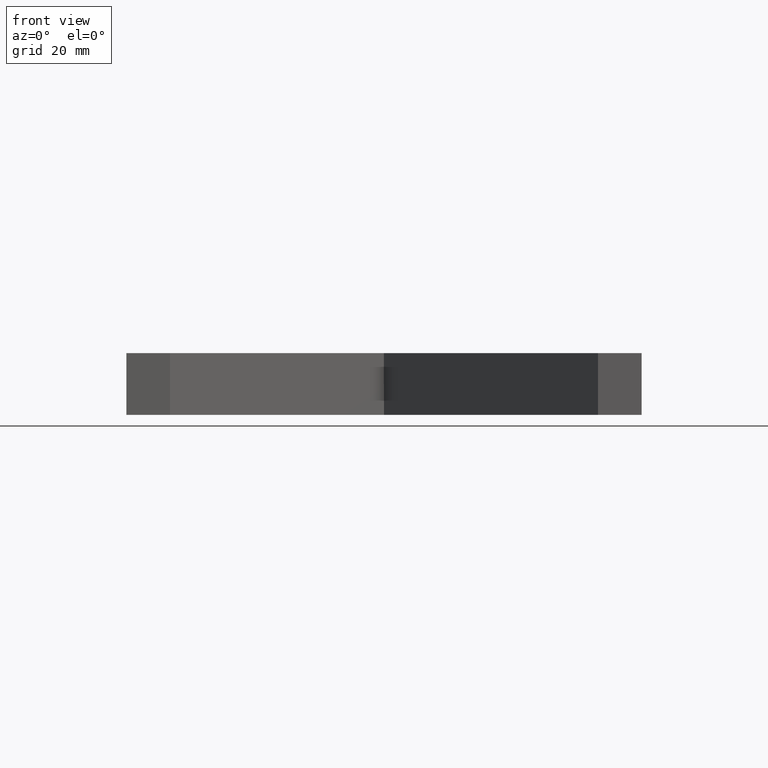
[diagram: clean part render]
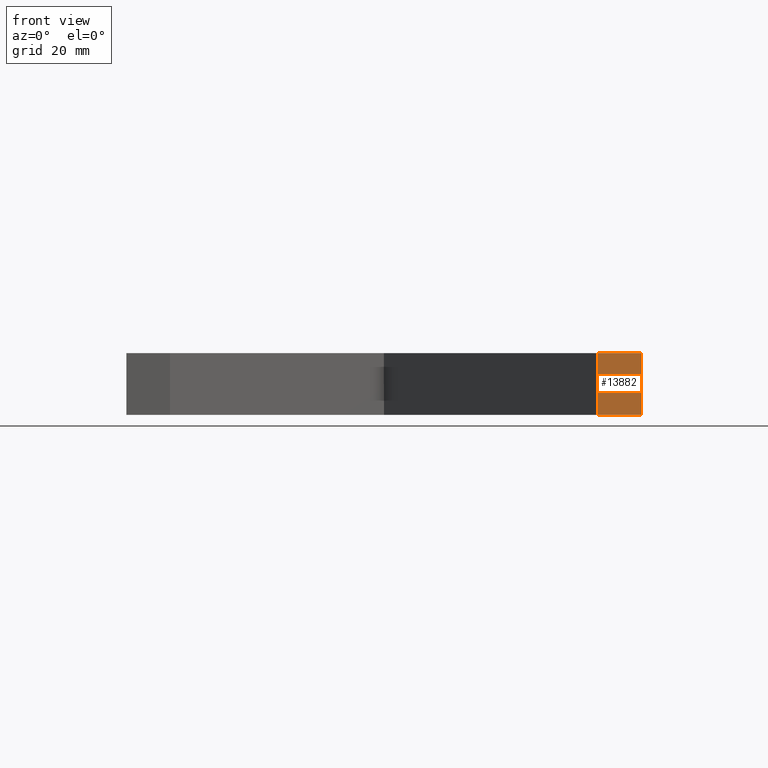
[diagram: same view with one face highlighted and labeled with its STEP entity id]
A machine part, front view. The second image highlights one B-rep face of the part: STEP entity #13882.
In plain terms, the highlighted planar face has unit normal (0, 1, 0).
Its self-contained STEP definition (entity closure, byte-faithful):
#231 = VERTEX_POINT ( 'NONE', #5825 ) ;
#827 = EDGE_LOOP ( 'NONE', ( #12012, #6180, #4284, #12902 ) ) ;
#1143 = EDGE_CURVE ( 'NONE', #231, #5224, #4309, .T. ) ;
#1351 = LINE ( 'NONE', #9395, #2035 ) ;
#1991 = DIRECTION ( 'NONE',  ( 0.000000000000000000, 1.000000000000000000, 0.000000000000000000 ) ) ;
#2035 = VECTOR ( 'NONE', #13005, 1000.000000000000000 ) ;
#2039 = CARTESIAN_POINT ( 'NONE',  ( 41.51471862576144645, -50.00000000000000000, 12.00000000000000000 ) ) ;
#2086 = PLANE ( 'NONE',  #3555 ) ;
#3555 = AXIS2_PLACEMENT_3D ( 'NONE', #2039, #1991, #8542 ) ;
#3633 = DIRECTION ( 'NONE',  ( -0.000000000000000000, -0.000000000000000000, -1.000000000000000000 ) ) ;
#4050 = EDGE_CURVE ( 'NONE', #7827, #12082, #9953, .T. ) ;
#4284 = ORIENTED_EDGE ( 'NONE', *, *, #1143, .F. ) ;
#4309 = LINE ( 'NONE', #11348, #7075 ) ;
#5224 = VERTEX_POINT ( 'NONE', #6348 ) ;
#5538 = LINE ( 'NONE', #8635, #11222 ) ;
#5825 = CARTESIAN_POINT ( 'NONE',  ( 41.51471862576144645, -50.00000000000000000, 12.00000000000000000 ) ) ;
#5887 = DIRECTION ( 'NONE',  ( 1.000000000000000000, 0.000000000000000000, 0.000000000000000000 ) ) ;
#6180 = ORIENTED_EDGE ( 'NONE', *, *, #8709, .F. ) ;
#6348 = CARTESIAN_POINT ( 'NONE',  ( 50.00000000000001421, -50.00000000000000000, 12.00000000000000000 ) ) ;
#6395 = FACE_OUTER_BOUND ( 'NONE', #827, .T. ) ;
#7075 = VECTOR ( 'NONE', #5887, 1000.000000000000000 ) ;
#7270 = CARTESIAN_POINT ( 'NONE',  ( 50.00000000000001421, -50.00000000000000000, 0.000000000000000000 ) ) ;
#7827 = VERTEX_POINT ( 'NONE', #9955 ) ;
#8243 = VECTOR ( 'NONE', #8710, 1000.000000000000000 ) ;
#8542 = DIRECTION ( 'NONE',  ( 0.000000000000000000, -0.000000000000000000, 1.000000000000000000 ) ) ;
#8635 = CARTESIAN_POINT ( 'NONE',  ( 41.51471862576144645, -50.00000000000000000, 12.00000000000000000 ) ) ;
#8709 = EDGE_CURVE ( 'NONE', #5224, #12082, #1351, .T. ) ;
#8710 = DIRECTION ( 'NONE',  ( 1.000000000000000000, 0.000000000000000000, 0.000000000000000000 ) ) ;
#9395 = CARTESIAN_POINT ( 'NONE',  ( 50.00000000000001421, -50.00000000000000000, 12.00000000000000000 ) ) ;
#9953 = LINE ( 'NONE', #14223, #8243 ) ;
#9955 = CARTESIAN_POINT ( 'NONE',  ( 41.51471862576144645, -50.00000000000000000, 0.000000000000000000 ) ) ;
#11222 = VECTOR ( 'NONE', #3633, 1000.000000000000000 ) ;
#11348 = CARTESIAN_POINT ( 'NONE',  ( 41.51471862576144645, -50.00000000000000000, 12.00000000000000000 ) ) ;
#12012 = ORIENTED_EDGE ( 'NONE', *, *, #4050, .T. ) ;
#12082 = VERTEX_POINT ( 'NONE', #7270 ) ;
#12902 = ORIENTED_EDGE ( 'NONE', *, *, #13373, .T. ) ;
#13005 = DIRECTION ( 'NONE',  ( -0.000000000000000000, -0.000000000000000000, -1.000000000000000000 ) ) ;
#13373 = EDGE_CURVE ( 'NONE', #231, #7827, #5538, .T. ) ;
#13882 = ADVANCED_FACE ( 'NONE', ( #6395 ), #2086, .F. ) ;
#14223 = CARTESIAN_POINT ( 'NONE',  ( 41.51471862576144645, -50.00000000000000000, 0.000000000000000000 ) ) ;